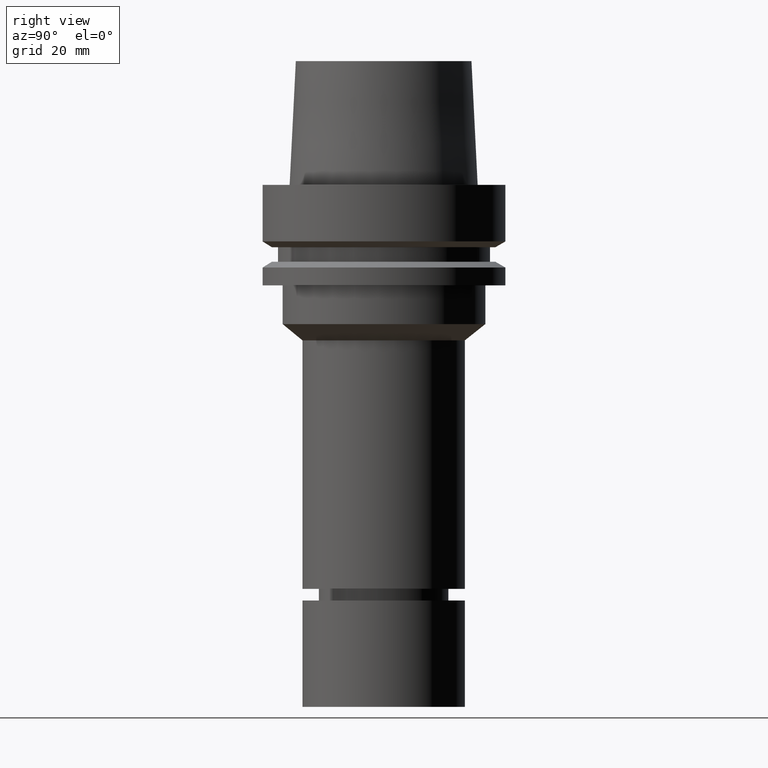
[diagram: clean part render]
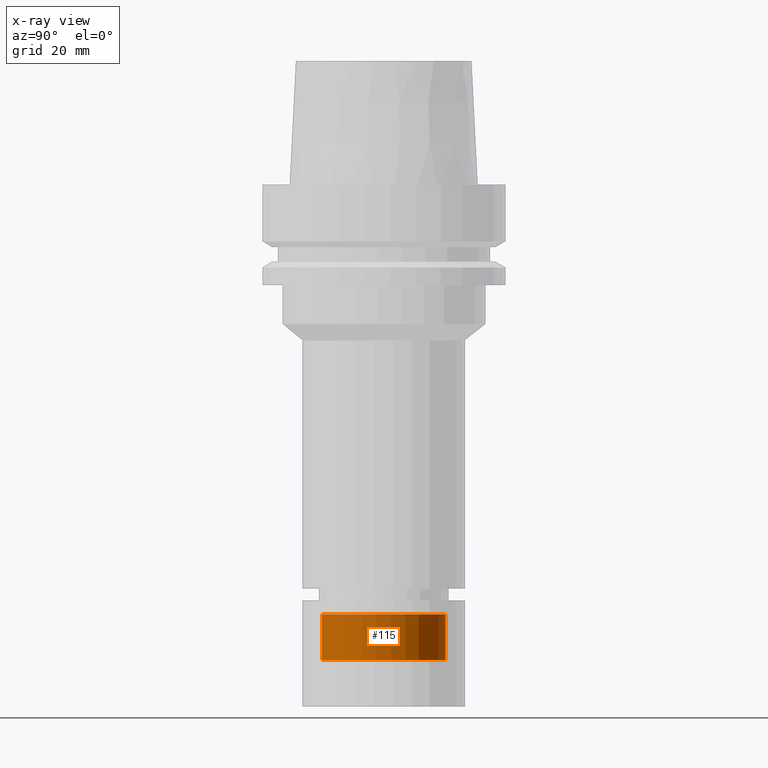
[diagram: x-ray — body ghosted, one internal face saturated and labeled with its STEP entity id]
A machine part, right view, then the same camera in x-ray: the body is ghosted and one INTERNAL B-rep face — a face not visible from any outside direction — is saturated and labeled: STEP entity #115.
In plain terms, the highlighted cylindrical surface (bore or boss wall) has radius 16 mm, axis along (-0, -0, 1).
Its self-contained STEP definition (entity closure, byte-faithful):
#115=ADVANCED_FACE('Unnamed[1]',(#270,#271),#272,.T.);
#126=EDGE_CURVE('Unnamed[1]',#289,#289,#290,.T.);
#133=EDGE_CURVE('Unnamed[1]',#300,#300,#301,.T.);
#270=FACE_BOUND('',#474,.T.);
#271=FACE_BOUND('',#475,.T.);
#272=CYLINDRICAL_SURFACE('',#476,16.0);
#289=VERTEX_POINT('',#497);
#290=CIRCLE('',#498,16.0);
#300=VERTEX_POINT('',#511);
#301=CIRCLE('',#512,16.0);
#474=EDGE_LOOP('',(#691));
#475=EDGE_LOOP('',(#692));
#476=AXIS2_PLACEMENT_3D('',#693,#694,#695);
#497=CARTESIAN_POINT('',(7.52513275041975E-015,16.0,-122.894744111674));
#498=AXIS2_PLACEMENT_3D('',#714,#715,#716);
#511=CARTESIAN_POINT('',(6.8048281744902E-015,16.0,-111.131277674967));
#512=AXIS2_PLACEMENT_3D('',#726,#727,#728);
#691=ORIENTED_EDGE('',*,*,#133,.F.);
#692=ORIENTED_EDGE('',*,*,#126,.T.);
#693=CARTESIAN_POINT('',(7.16498046245498E-015,1.432996092491E-014,-117.013010893321));
#694=DIRECTION('',(-6.12323399573677E-017,-1.22464679914735E-016,1.0));
#695=DIRECTION('',(-1.23259516440783E-032,1.0,1.22464679914735E-016));
#714=CARTESIAN_POINT('',(7.52513275041975E-015,1.50502655008395E-014,-122.894744111674));
#715=DIRECTION('',(-6.12323399573677E-017,-1.22464679914735E-016,1.0));
#716=DIRECTION('',(-1.23259516440783E-032,1.0,1.22464679914735E-016));
#726=CARTESIAN_POINT('',(6.8048281744902E-015,1.36096563489804E-014,-111.131277674967));
#727=DIRECTION('',(-6.12323399573677E-017,-1.22464679914735E-016,1.0));
#728=DIRECTION('',(-1.23259516440783E-032,1.0,1.22464679914735E-016));